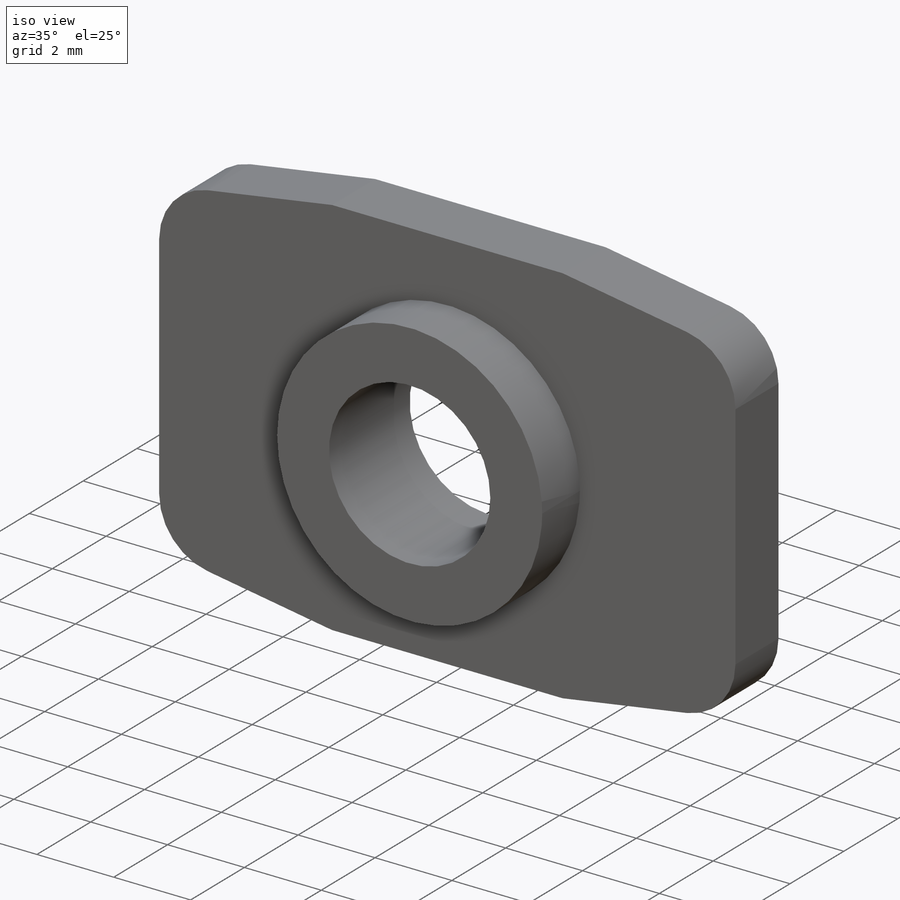
[diagram: iso view]
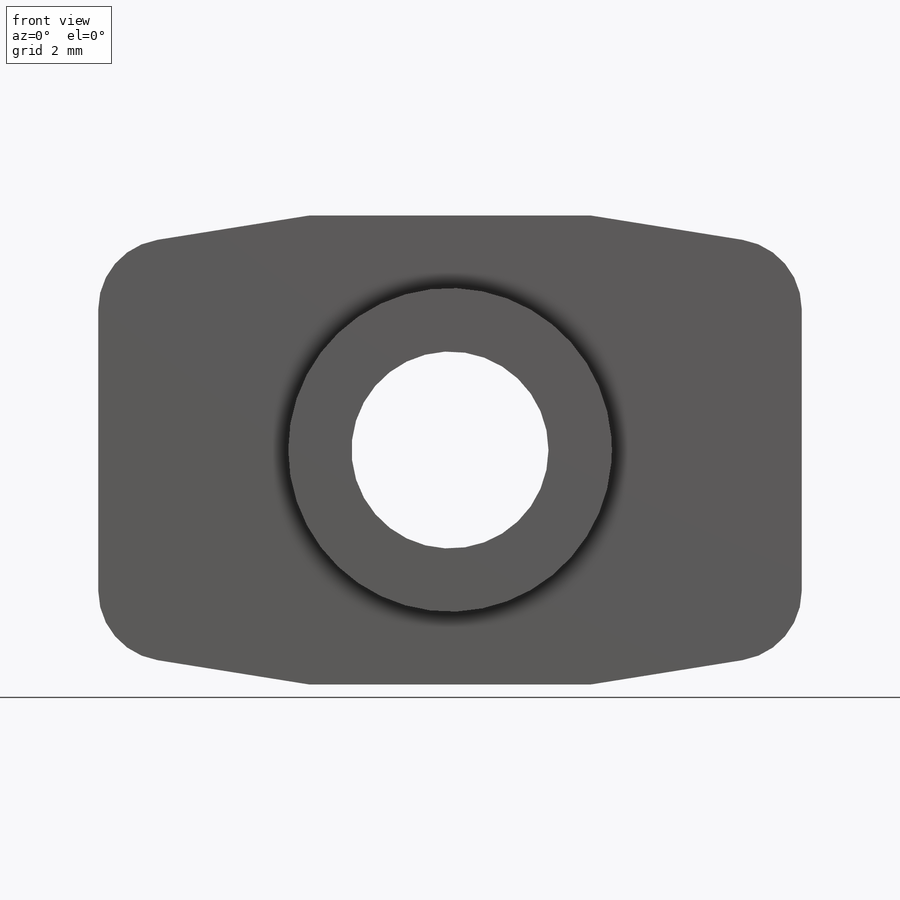
[diagram: front view]
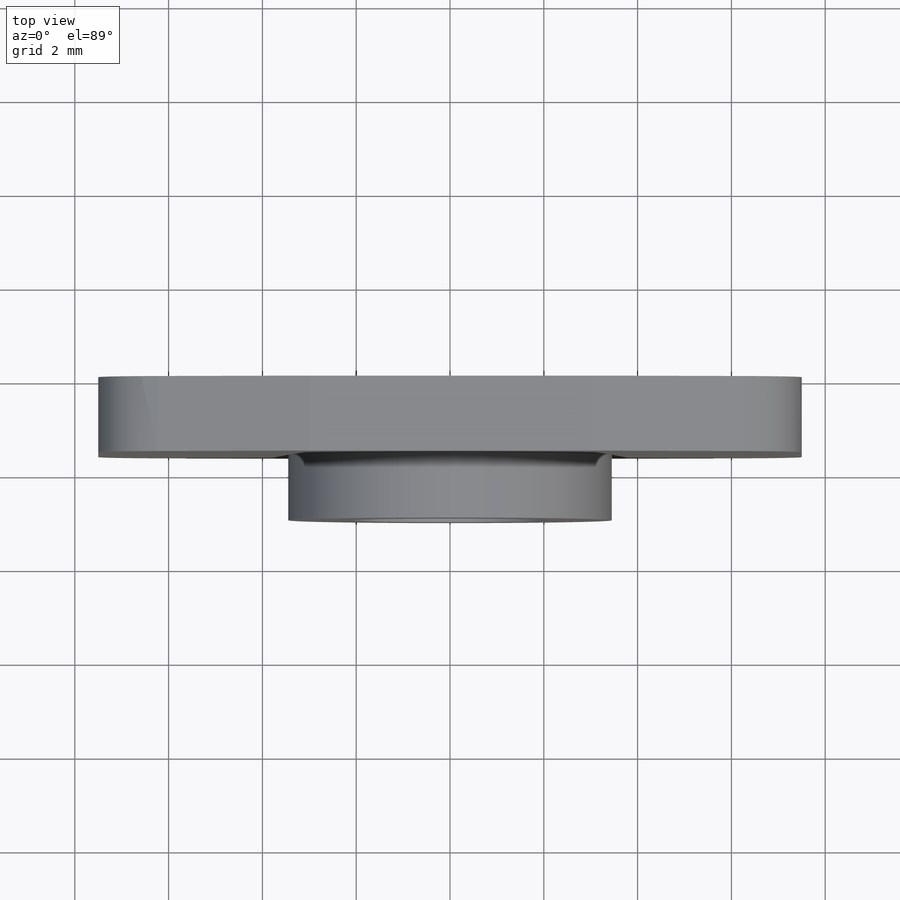
[diagram: top view]
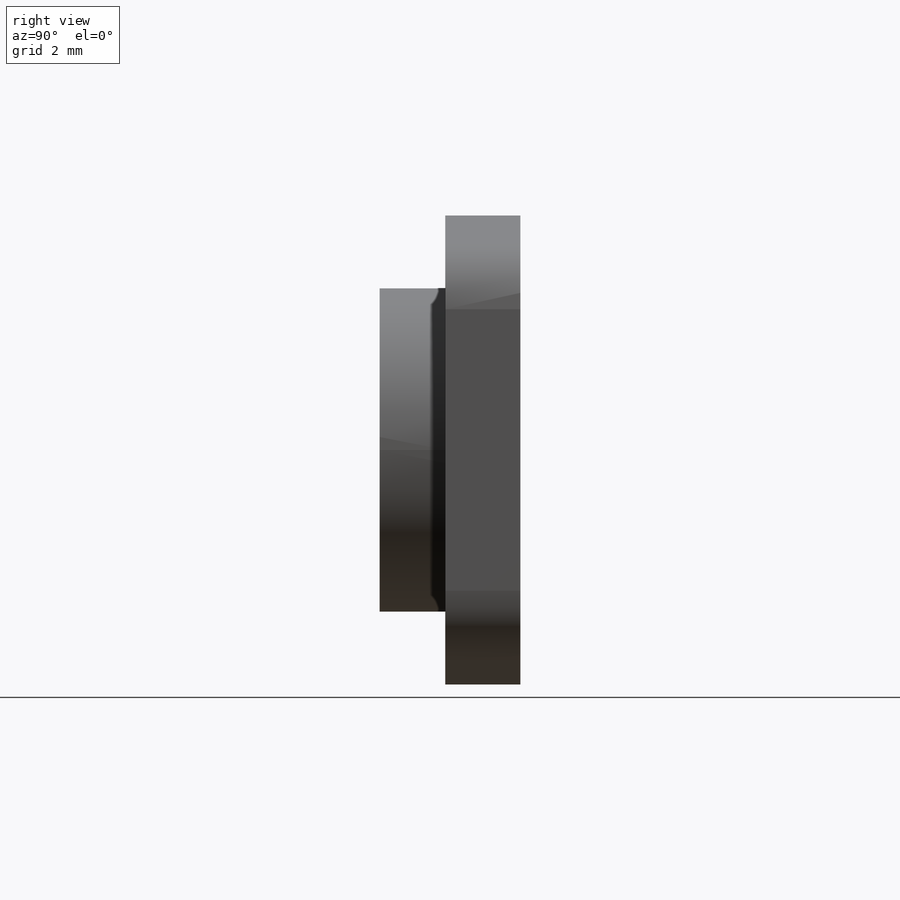
[diagram: right view]
SOLIDWORKS PART (.sldprt)
format: sldprt  version: not decoded by parser v0  size: 218,112 bytes
history: native  units: mm
features: sketch x4, extrude x2, material x1, hole x1 (+13 scaffold rows collapsed)
feature tree (21):
  scaffold x13  (default folders/planes/origin — collapsed)
  material  "Plain Carbon Steel"
  sketch  "Sketch1"  dims[c1.D3=1.5mm c1.D5=1.5mm c1.D1=15.0mm c1.D2=10.0mm c2.D1=15.0mm c2.D2=10.0mm c2.D3=6.0mm c2.D4=6.0mm]
  extrude  "Boss-Extrude1"  Depth=1.6mm
  sketch  "Sketch2"  dims[D2=6.9mm D1=20.0mm]
  extrude  "Boss-Extrude2"  Depth=1.4mm
  hole  "M5x0.8 Tapped Hole1"  Diameter=4.2mm Depth=3mm
  sketch  "Sketch4"
  sketch  "Sketch3"  dims[hole-wizard template sketch: 61 standard entries collapsed; hole parameters above]
decode coverage: 6 of 7 modeling features carry decoded parameters
note: ~ marks probable driven/reference dimensions
note: suppression state not decoded; provenance and decode notes live in map.json
